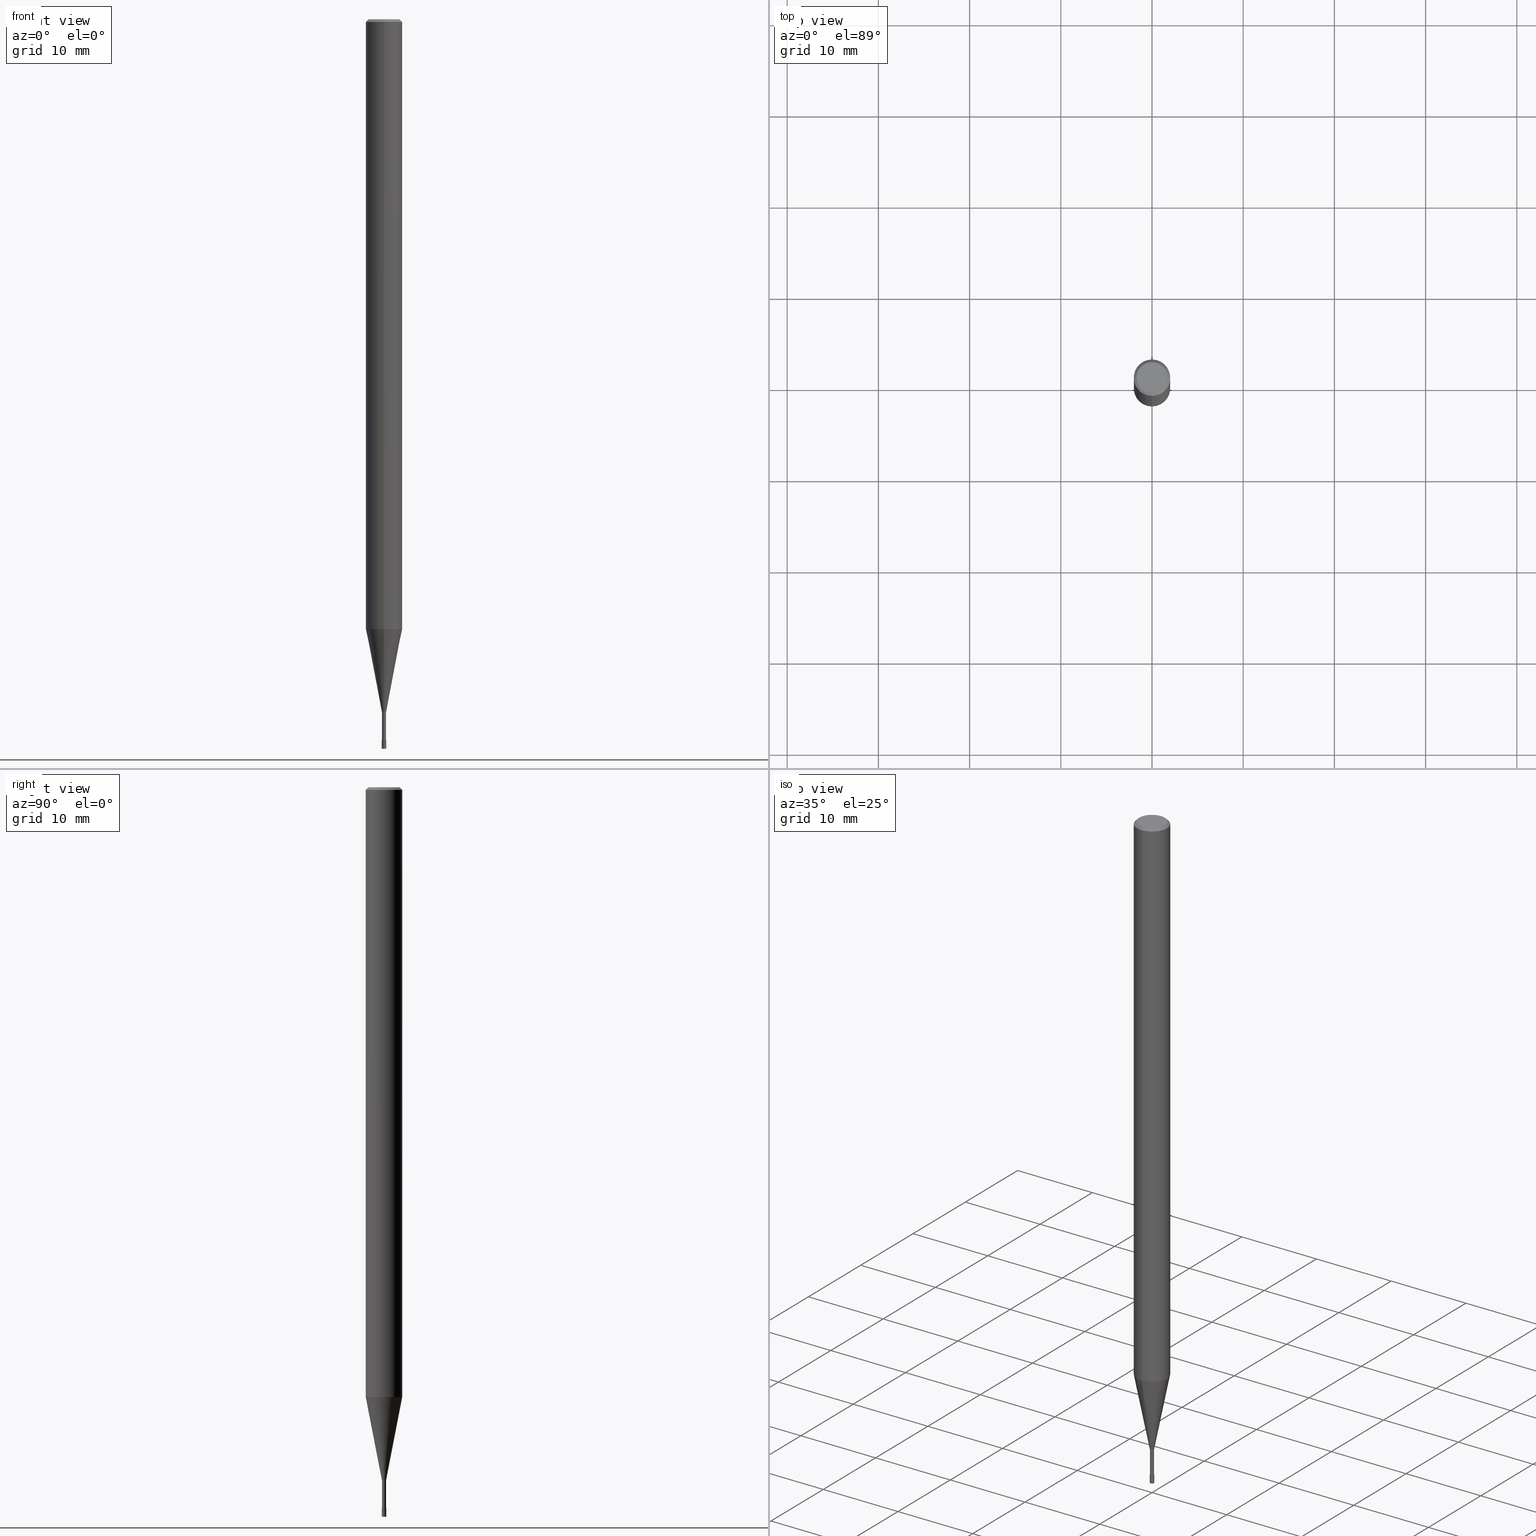
[diagram: canonical four-view strip — front | top / right | iso, engineering-drawing reading convention]
A machine part, canonical four-view strip (front | top / right | iso — engineering-drawing reading convention). The complete STEP part file that produces these views, byte-faithful:
ISO-10303-21;
HEADER;
FILE_DESCRIPTION(('no description'),'unknown implementation level');
FILE_NAME('CPRL2005-4-Huellk.stp','  ',('CIMSOURCE GmbH'),('CADClick - KiM GmbH - www.kimweb.de'),'unknown preprocess','ACIS','unknown authorization');
FILE_SCHEMA(('automotive_design'));
ENDSEC;
DATA;
#1=MECHANICAL_DESIGN_GEOMETRIC_PRESENTATION_REPRESENTATION(' ',(#14,#15,#16,#17,#18,#19,#20,#21,#22,#23,#24,#25,#26,#27,#28,#29,#30,#31,#32,#33,#34,#35,#36,#37,#38,#39,#40,#41,#42,#43,#44,#45,#46,#47,#48,#49,#50,#51,#52,#53,#54,#55,#56,#57,#58,#59,#60,#61,#62,#63,#64,#65,#66,#67,#68,#69,#70,#71,#72),#10);
#2=PRODUCT_DEFINITION_CONTEXT('',#73,'design');
#3=APPLICATION_PROTOCOL_DEFINITION('INTERNATIONAL STANDARD','automotive_design',1994,#73);
#4=PRODUCT_CATEGORY_RELATIONSHIP('NONE','NONE',#74,#75);
#5=SHAPE_DEFINITION_REPRESENTATION(#76,#77);
#6=PRODUCT_DEFINITION_CONTEXT('',#78,'design');
#7=APPLICATION_PROTOCOL_DEFINITION('INTERNATIONAL STANDARD','automotive_design',1994,#78);
#8=PRODUCT_CATEGORY_RELATIONSHIP('NONE','NONE',#79,#80);
#9=SHAPE_DEFINITION_REPRESENTATION(#81,#82);
#10= (GEOMETRIC_REPRESENTATION_CONTEXT(3)GLOBAL_UNCERTAINTY_ASSIGNED_CONTEXT((#85))GLOBAL_UNIT_ASSIGNED_CONTEXT((#87,#88,#89))REPRESENTATION_CONTEXT('NONE','WORKSPACE'));
#14=STYLED_ITEM('',(#91),#92);
#15=STYLED_ITEM('',(#93),#94);
#16=STYLED_ITEM('',(#95),#96);
#17=STYLED_ITEM('',(#97),#98);
#18=STYLED_ITEM('',(#99),#100);
#19=STYLED_ITEM('',(#101),#102);
#20=STYLED_ITEM('',(#103),#104);
#21=STYLED_ITEM('',(#105),#106);
#22=STYLED_ITEM('',(#107),#108);
#23=STYLED_ITEM('',(#109),#110);
#24=STYLED_ITEM('',(#111),#112);
#25=STYLED_ITEM('',(#113),#114);
#26=STYLED_ITEM('',(#115),#116);
#27=STYLED_ITEM('',(#117),#118);
#28=STYLED_ITEM('',(#119),#120);
#29=STYLED_ITEM('',(#121),#122);
#30=STYLED_ITEM('',(#123),#124);
#31=STYLED_ITEM('',(#125),#126);
#32=STYLED_ITEM('',(#127),#128);
#33=STYLED_ITEM('',(#129),#130);
#34=STYLED_ITEM('',(#131),#132);
#35=STYLED_ITEM('',(#133),#134);
#36=STYLED_ITEM('',(#135),#136);
#37=STYLED_ITEM('',(#137),#138);
#38=STYLED_ITEM('',(#139),#140);
#39=STYLED_ITEM('',(#141),#142);
#40=STYLED_ITEM('',(#143),#144);
#41=STYLED_ITEM('',(#145),#146);
#42=STYLED_ITEM('',(#147),#148);
#43=STYLED_ITEM('',(#149),#150);
#44=STYLED_ITEM('',(#151),#152);
#45=STYLED_ITEM('',(#153),#154);
#46=STYLED_ITEM('',(#155),#156);
#47=STYLED_ITEM('',(#157),#158);
#48=STYLED_ITEM('',(#159),#160);
#49=STYLED_ITEM('',(#161),#162);
#50=STYLED_ITEM('',(#163),#164);
#51=STYLED_ITEM('',(#165),#166);
#52=STYLED_ITEM('',(#167),#168);
#53=STYLED_ITEM('',(#169),#170);
#54=STYLED_ITEM('',(#171),#172);
#55=STYLED_ITEM('',(#173),#174);
#56=STYLED_ITEM('',(#175),#176);
#57=STYLED_ITEM('',(#177),#178);
#58=STYLED_ITEM('',(#179),#180);
#59=STYLED_ITEM('',(#181),#182);
#60=STYLED_ITEM('',(#183),#184);
#61=STYLED_ITEM('',(#185),#186);
#62=STYLED_ITEM('',(#187),#188);
#63=STYLED_ITEM('',(#189),#190);
#64=STYLED_ITEM('',(#191),#192);
#65=STYLED_ITEM('',(#193),#194);
#66=STYLED_ITEM('',(#195),#196);
#67=STYLED_ITEM('',(#197),#198);
#68=STYLED_ITEM('',(#199),#200);
#69=STYLED_ITEM('',(#201),#202);
#70=STYLED_ITEM('',(#203),#204);
#71=STYLED_ITEM('',(#205),#206);
#72=STYLED_ITEM('',(#207),#208);
#73=APPLICATION_CONTEXT(' ');
#74=PRODUCT_CATEGORY('part','NONE');
#75=PRODUCT_RELATED_PRODUCT_CATEGORY('detail',' ',(#209));
#76=PRODUCT_DEFINITION_SHAPE('NONE','NONE',#210);
#77=ADVANCED_BREP_SHAPE_REPRESENTATION('1',(#146,#211),#10);
#78=APPLICATION_CONTEXT(' ');
#79=PRODUCT_CATEGORY('part','NONE');
#80=PRODUCT_RELATED_PRODUCT_CATEGORY('detail',' ',(#212));
#81=PRODUCT_DEFINITION_SHAPE('NONE','NONE',#213);
#82=ADVANCED_BREP_SHAPE_REPRESENTATION('2',(#174,#214),#10);
#85=UNCERTAINTY_MEASURE_WITH_UNIT(LENGTH_MEASURE(1.0E-006),#87,'','');
#87= (CONVERSION_BASED_UNIT('MILLIMETRE',#217)LENGTH_UNIT()NAMED_UNIT(#220));
#88= (NAMED_UNIT(#222)PLANE_ANGLE_UNIT()SI_UNIT($,.RADIAN.));
#89= (NAMED_UNIT(#222)SOLID_ANGLE_UNIT()SI_UNIT($,.STERADIAN.));
#91=PRESENTATION_STYLE_ASSIGNMENT((#228));
#92=EDGE_CURVE('',#134,#170,#229,.T.);
#93=PRESENTATION_STYLE_ASSIGNMENT((#230));
#94=EDGE_CURVE('',#100,#106,#231,.T.);
#95=PRESENTATION_STYLE_ASSIGNMENT((#232));
#96=EDGE_CURVE('',#178,#188,#233,.T.);
#97=PRESENTATION_STYLE_ASSIGNMENT((#234));
#98=EDGE_CURVE('',#116,#130,#235,.T.);
#99=PRESENTATION_STYLE_ASSIGNMENT((#236));
#100=VERTEX_POINT('',#237);
#101=PRESENTATION_STYLE_ASSIGNMENT((#238));
#102=ADVANCED_FACE('',(#239),#240,.T.);
#103=PRESENTATION_STYLE_ASSIGNMENT((#241));
#104=EDGE_CURVE('',#192,#160,#242,.T.);
#105=PRESENTATION_STYLE_ASSIGNMENT((#243));
#106=VERTEX_POINT('',#244);
#107=PRESENTATION_STYLE_ASSIGNMENT((#245));
#108=ADVANCED_FACE('',(#246),#247,.T.);
#109=PRESENTATION_STYLE_ASSIGNMENT((#248));
#110=EDGE_CURVE('',#188,#178,#249,.T.);
#111=PRESENTATION_STYLE_ASSIGNMENT((#250));
#112=ADVANCED_FACE('',(#251),#252,.T.);
#113=PRESENTATION_STYLE_ASSIGNMENT((#253));
#114=ADVANCED_FACE('',(#254),#255,.T.);
#115=PRESENTATION_STYLE_ASSIGNMENT((#256));
#116=VERTEX_POINT('',#257);
#117=PRESENTATION_STYLE_ASSIGNMENT((#258));
#118=VERTEX_POINT('',#259);
#119=PRESENTATION_STYLE_ASSIGNMENT((#260));
#120=ADVANCED_FACE('',(#261),#262,.T.);
#121=PRESENTATION_STYLE_ASSIGNMENT((#263));
#122=EDGE_CURVE('',#132,#118,#264,.T.);
#123=PRESENTATION_STYLE_ASSIGNMENT((#265));
#124=ADVANCED_FACE('',(#266,#267),#268,.T.);
#125=PRESENTATION_STYLE_ASSIGNMENT((#269));
#126=ADVANCED_FACE('',(#270),#271,.T.);
#127=PRESENTATION_STYLE_ASSIGNMENT((#272));
#128=ADVANCED_FACE('',(#273),#274,.T.);
#129=PRESENTATION_STYLE_ASSIGNMENT((#275));
#130=VERTEX_POINT('',#276);
#131=PRESENTATION_STYLE_ASSIGNMENT((#277));
#132=VERTEX_POINT('',#278);
#133=PRESENTATION_STYLE_ASSIGNMENT((#279));
#134=VERTEX_POINT('',#280);
#135=PRESENTATION_STYLE_ASSIGNMENT((#281));
#136=ADVANCED_FACE('',(#282),#283,.T.);
#137=PRESENTATION_STYLE_ASSIGNMENT((#284));
#138=EDGE_CURVE('',#140,#106,#285,.T.);
#139=PRESENTATION_STYLE_ASSIGNMENT((#286));
#140=VERTEX_POINT('',#287);
#141=PRESENTATION_STYLE_ASSIGNMENT((#288));
#142=EDGE_CURVE('',#190,#186,#289,.T.);
#143=PRESENTATION_STYLE_ASSIGNMENT((#290));
#144=EDGE_CURVE('',#170,#134,#291,.T.);
#145=PRESENTATION_STYLE_ASSIGNMENT((#292));
#146=MANIFOLD_SOLID_BREP('1',#293);
#147=PRESENTATION_STYLE_ASSIGNMENT((#294));
#148=EDGE_CURVE('',#140,#208,#295,.T.);
#149=PRESENTATION_STYLE_ASSIGNMENT((#296));
#150=EDGE_CURVE('',#188,#100,#297,.T.);
#151=PRESENTATION_STYLE_ASSIGNMENT((#298));
#152=ADVANCED_FACE('',(#299),#300,.T.);
#153=PRESENTATION_STYLE_ASSIGNMENT((#301));
#154=EDGE_CURVE('',#118,#186,#302,.T.);
#155=PRESENTATION_STYLE_ASSIGNMENT((#303));
#156=EDGE_CURVE('',#106,#100,#304,.T.);
#157=PRESENTATION_STYLE_ASSIGNMENT((#305));
#158=EDGE_CURVE('',#130,#190,#306,.T.);
#159=PRESENTATION_STYLE_ASSIGNMENT((#307));
#160=VERTEX_POINT('',#308);
#161=PRESENTATION_STYLE_ASSIGNMENT((#309));
#162=ADVANCED_FACE('',(#310),#311,.T.);
#163=PRESENTATION_STYLE_ASSIGNMENT((#312));
#164=ADVANCED_FACE('',(#313),#314,.T.);
#165=PRESENTATION_STYLE_ASSIGNMENT((#315));
#166=EDGE_CURVE('',#190,#132,#316,.T.);
#167=PRESENTATION_STYLE_ASSIGNMENT((#317));
#168=EDGE_CURVE('',#130,#116,#318,.T.);
#169=PRESENTATION_STYLE_ASSIGNMENT((#319));
#170=VERTEX_POINT('',#320);
#171=PRESENTATION_STYLE_ASSIGNMENT((#321));
#172=EDGE_CURVE('',#118,#132,#322,.T.);
#173=PRESENTATION_STYLE_ASSIGNMENT((#323));
#174=MANIFOLD_SOLID_BREP('2',#324);
#175=PRESENTATION_STYLE_ASSIGNMENT((#325));
#176=ADVANCED_FACE('',(#326),#327,.T.);
#177=PRESENTATION_STYLE_ASSIGNMENT((#328));
#178=VERTEX_POINT('',#329);
#179=PRESENTATION_STYLE_ASSIGNMENT((#330));
#180=EDGE_CURVE('',#106,#178,#331,.T.);
#181=PRESENTATION_STYLE_ASSIGNMENT((#332));
#182=ADVANCED_FACE('',(#333),#334,.T.);
#183=PRESENTATION_STYLE_ASSIGNMENT((#335));
#184=EDGE_CURVE('',#160,#192,#336,.T.);
#185=PRESENTATION_STYLE_ASSIGNMENT((#337));
#186=VERTEX_POINT('',#338);
#187=PRESENTATION_STYLE_ASSIGNMENT((#339));
#188=VERTEX_POINT('',#340);
#189=PRESENTATION_STYLE_ASSIGNMENT((#341));
#190=VERTEX_POINT('',#342);
#191=PRESENTATION_STYLE_ASSIGNMENT((#343));
#192=VERTEX_POINT('',#344);
#193=PRESENTATION_STYLE_ASSIGNMENT((#345));
#194=EDGE_CURVE('',#170,#192,#346,.T.);
#195=PRESENTATION_STYLE_ASSIGNMENT((#347));
#196=ADVANCED_FACE('',(#348),#349,.T.);
#197=PRESENTATION_STYLE_ASSIGNMENT((#350));
#198=EDGE_CURVE('',#160,#134,#351,.T.);
#199=PRESENTATION_STYLE_ASSIGNMENT((#352));
#200=EDGE_CURVE('',#100,#208,#353,.T.);
#201=PRESENTATION_STYLE_ASSIGNMENT((#354));
#202=EDGE_CURVE('',#208,#140,#355,.T.);
#203=PRESENTATION_STYLE_ASSIGNMENT((#356));
#204=EDGE_CURVE('',#186,#190,#357,.T.);
#205=PRESENTATION_STYLE_ASSIGNMENT((#358));
#206=EDGE_CURVE('',#186,#116,#359,.T.);
#207=PRESENTATION_STYLE_ASSIGNMENT((#360));
#208=VERTEX_POINT('',#361);
#209=PRODUCT('1','1','PART-1-DESC',(#362));
#210=PRODUCT_DEFINITION('NONE','NONE',#363,#2);
#211=AXIS2_PLACEMENT_3D('',#364,#365,#366);
#212=PRODUCT('2','2','PART-2-DESC',(#367));
#213=PRODUCT_DEFINITION('NONE','NONE',#368,#6);
#214=AXIS2_PLACEMENT_3D('',#369,#370,#371);
#217=LENGTH_MEASURE_WITH_UNIT(LENGTH_MEASURE(1.0),#372);
#220=DIMENSIONAL_EXPONENTS(1.0,0.0,0.0,0.0,0.0,0.0,0.0);
#222=DIMENSIONAL_EXPONENTS(0.0,0.0,0.0,0.0,0.0,0.0,0.0);
#228=CURVE_STYLE('',#373,POSITIVE_LENGTH_MEASURE(1.0E-006),#374);
#229=CIRCLE('',#375,0.25);
#230=CURVE_STYLE('',#376,POSITIVE_LENGTH_MEASURE(1.0E-006),#377);
#231=CIRCLE('',#378,0.22495);
#232=CURVE_STYLE('',#379,POSITIVE_LENGTH_MEASURE(1.0E-006),#380);
#233=CIRCLE('',#381,1.99995);
#234=CURVE_STYLE('',#382,POSITIVE_LENGTH_MEASURE(1.0E-006),#383);
#235=CIRCLE('',#384,2.0);
#236=POINT_STYLE(' ',#385,POSITIVE_LENGTH_MEASURE(1.0E-006),#386);
#237=CARTESIAN_POINT('',(0.0,0.22495,-76.0));
#238=SURFACE_STYLE_USAGE(.BOTH.,#387);
#239=FACE_OUTER_BOUND('',#388,.T.);
#240=CYLINDRICAL_SURFACE('',#389,0.22495);
#241=CURVE_STYLE('',#390,POSITIVE_LENGTH_MEASURE(1.0E-006),#391);
#242=CIRCLE('',#392,0.2499);
#243=POINT_STYLE(' ',#393,POSITIVE_LENGTH_MEASURE(1.0E-006),#394);
#244=CARTESIAN_POINT('',(2.75475199292344E-017,-0.22495,-76.0));
#245=SURFACE_STYLE_USAGE(.BOTH.,#395);
#246=FACE_OUTER_BOUND('',#396,.T.);
#247=PLANE('',#397);
#248=CURVE_STYLE('',#398,POSITIVE_LENGTH_MEASURE(1.0E-006),#399);
#249=CIRCLE('',#400,1.99995);
#250=SURFACE_STYLE_USAGE(.BOTH.,#401);
#251=FACE_OUTER_BOUND('',#402,.T.);
#252=CYLINDRICAL_SURFACE('',#403,2.0);
#253=SURFACE_STYLE_USAGE(.BOTH.,#404);
#254=FACE_OUTER_BOUND('',#405,.T.);
#255=CONICAL_SURFACE('',#406,1.85,0.785398163397453);
#256=POINT_STYLE(' ',#407,POSITIVE_LENGTH_MEASURE(1.0E-006),#408);
#257=CARTESIAN_POINT('',(0.0,2.0,-66.868));
#258=POINT_STYLE(' ',#409,POSITIVE_LENGTH_MEASURE(1.0E-006),#410);
#259=CARTESIAN_POINT('',(0.0,1.7,0.0));
#260=SURFACE_STYLE_USAGE(.BOTH.,#411);
#261=FACE_OUTER_BOUND('',#412,.T.);
#262=CYLINDRICAL_SURFACE('',#413,2.0);
#263=CURVE_STYLE('',#414,POSITIVE_LENGTH_MEASURE(1.0E-006),#415);
#264=CIRCLE('',#416,1.7);
#265=SURFACE_STYLE_USAGE(.BOTH.,#417);
#266=FACE_OUTER_BOUND('',#418,.T.);
#267=FACE_BOUND('',#419,.T.);
#268=PLANE('',#420);
#269=SURFACE_STYLE_USAGE(.BOTH.,#421);
#270=FACE_OUTER_BOUND('',#422,.T.);
#271=PLANE('',#423);
#272=SURFACE_STYLE_USAGE(.BOTH.,#424);
#273=FACE_OUTER_BOUND('',#425,.T.);
#274=CONICAL_SURFACE('',#426,0.24995,9.99999996666557E-005);
#275=POINT_STYLE(' ',#427,POSITIVE_LENGTH_MEASURE(1.0E-006),#428);
#276=CARTESIAN_POINT('',(2.44921270764475E-016,-2.0,-66.868));
#277=POINT_STYLE(' ',#429,POSITIVE_LENGTH_MEASURE(1.0E-006),#430);
#278=CARTESIAN_POINT('',(2.08183080149804E-016,-1.7,0.0));
#279=POINT_STYLE(' ',#431,POSITIVE_LENGTH_MEASURE(1.0E-006),#432);
#280=CARTESIAN_POINT('',(0.0,0.25,-80.0));
#281=SURFACE_STYLE_USAGE(.BOTH.,#433);
#282=FACE_OUTER_BOUND('',#434,.T.);
#283=PLANE('',#435);
#284=CURVE_STYLE('',#436,POSITIVE_LENGTH_MEASURE(1.0E-006),#437);
#285=LINE('',#438,#439);
#286=POINT_STYLE(' ',#440,POSITIVE_LENGTH_MEASURE(1.0E-006),#441);
#287=CARTESIAN_POINT('',(2.75475199292344E-017,-0.22495,-79.0));
#288=CURVE_STYLE('',#442,POSITIVE_LENGTH_MEASURE(1.0E-006),#443);
#289=CIRCLE('',#444,2.0);
#290=CURVE_STYLE('',#445,POSITIVE_LENGTH_MEASURE(1.0E-006),#446);
#291=CIRCLE('',#447,0.25);
#292=SURFACE_STYLE_USAGE(.BOTH.,#448);
#293=CLOSED_SHELL('',(#176,#162,#120,#164,#124,#126,#114,#112,#152,#102,#108));
#294=CURVE_STYLE('',#449,POSITIVE_LENGTH_MEASURE(1.0E-006),#450);
#295=CIRCLE('',#451,0.22495);
#296=CURVE_STYLE('',#452,POSITIVE_LENGTH_MEASURE(1.0E-006),#453);
#297=LINE('',#454,#455);
#298=SURFACE_STYLE_USAGE(.BOTH.,#456);
#299=FACE_OUTER_BOUND('',#457,.T.);
#300=CONICAL_SURFACE('',#458,1.11245,0.191977672522416);
#301=CURVE_STYLE('',#459,POSITIVE_LENGTH_MEASURE(1.0E-006),#460);
#302=LINE('',#461,#462);
#303=CURVE_STYLE('',#463,POSITIVE_LENGTH_MEASURE(1.0E-006),#464);
#304=CIRCLE('',#465,0.22495);
#305=CURVE_STYLE('',#466,POSITIVE_LENGTH_MEASURE(1.0E-006),#467);
#306=LINE('',#468,#469);
#307=POINT_STYLE(' ',#470,POSITIVE_LENGTH_MEASURE(1.0E-006),#471);
#308=CARTESIAN_POINT('',(0.0,0.2499,-79.0));
#309=SURFACE_STYLE_USAGE(.BOTH.,#472);
#310=FACE_OUTER_BOUND('',#473,.T.);
#311=CONICAL_SURFACE('',#474,1.11245,0.191977672522416);
#312=SURFACE_STYLE_USAGE(.BOTH.,#475);
#313=FACE_OUTER_BOUND('',#476,.T.);
#314=CONICAL_SURFACE('',#477,1.85,0.785398163397453);
#315=CURVE_STYLE('',#478,POSITIVE_LENGTH_MEASURE(1.0E-006),#479);
#316=LINE('',#480,#481);
#317=CURVE_STYLE('',#482,POSITIVE_LENGTH_MEASURE(1.0E-006),#483);
#318=CIRCLE('',#484,2.0);
#319=POINT_STYLE(' ',#485,POSITIVE_LENGTH_MEASURE(1.0E-006),#486);
#320=CARTESIAN_POINT('',(3.06151588455594E-017,-0.25,-80.0));
#321=CURVE_STYLE('',#487,POSITIVE_LENGTH_MEASURE(1.0E-006),#488);
#322=CIRCLE('',#489,1.7);
#323=SURFACE_STYLE_USAGE(.BOTH.,#490);
#324=CLOSED_SHELL('',(#128,#136,#182,#196));
#325=SURFACE_STYLE_USAGE(.BOTH.,#491);
#326=FACE_OUTER_BOUND('',#492,.T.);
#327=CYLINDRICAL_SURFACE('',#493,0.22495);
#328=POINT_STYLE(' ',#494,POSITIVE_LENGTH_MEASURE(1.0E-006),#495);
#329=CARTESIAN_POINT('',(2.44915147732706E-016,-1.99995,-66.868));
#330=CURVE_STYLE('',#496,POSITIVE_LENGTH_MEASURE(1.0E-006),#497);
#331=LINE('',#498,#499);
#332=SURFACE_STYLE_USAGE(.BOTH.,#500);
#333=FACE_OUTER_BOUND('',#501,.T.);
#334=CONICAL_SURFACE('',#502,0.24995,9.99999996666557E-005);
#335=CURVE_STYLE('',#503,POSITIVE_LENGTH_MEASURE(1.0E-006),#504);
#336=CIRCLE('',#505,0.2499);
#337=POINT_STYLE(' ',#506,POSITIVE_LENGTH_MEASURE(1.0E-006),#507);
#338=CARTESIAN_POINT('',(0.0,2.0,-0.299999999999997));
#339=POINT_STYLE(' ',#508,POSITIVE_LENGTH_MEASURE(1.0E-006),#509);
#340=CARTESIAN_POINT('',(0.0,1.99995,-66.868));
#341=POINT_STYLE(' ',#510,POSITIVE_LENGTH_MEASURE(1.0E-006),#511);
#342=CARTESIAN_POINT('',(2.44921270764475E-016,-2.0,-0.299999999999997));
#343=POINT_STYLE(' ',#512,POSITIVE_LENGTH_MEASURE(1.0E-006),#513);
#344=CARTESIAN_POINT('',(3.06029127820212E-017,-0.2499,-79.0));
#345=CURVE_STYLE('',#514,POSITIVE_LENGTH_MEASURE(1.0E-006),#515);
#346=LINE('',#516,#517);
#347=SURFACE_STYLE_USAGE(.BOTH.,#518);
#348=FACE_OUTER_BOUND('',#519,.T.);
#349=PLANE('',#520);
#350=CURVE_STYLE('',#521,POSITIVE_LENGTH_MEASURE(1.0E-006),#522);
#351=LINE('',#523,#524);
#352=CURVE_STYLE('',#525,POSITIVE_LENGTH_MEASURE(1.0E-006),#526);
#353=LINE('',#527,#528);
#354=CURVE_STYLE('',#529,POSITIVE_LENGTH_MEASURE(1.0E-006),#530);
#355=CIRCLE('',#531,0.22495);
#356=CURVE_STYLE('',#532,POSITIVE_LENGTH_MEASURE(1.0E-006),#533);
#357=CIRCLE('',#534,2.0);
#358=CURVE_STYLE('',#535,POSITIVE_LENGTH_MEASURE(1.0E-006),#536);
#359=LINE('',#537,#538);
#360=POINT_STYLE(' ',#539,POSITIVE_LENGTH_MEASURE(1.0E-006),#540);
#361=CARTESIAN_POINT('',(0.0,0.22495,-79.0));
#362=PRODUCT_CONTEXT('',#73,'mechanical');
#363=PRODUCT_DEFINITION_FORMATION_WITH_SPECIFIED_SOURCE(' ','NONE',#209,.NOT_KNOWN.);
#364=CARTESIAN_POINT('',(0.0,0.0,0.0));
#365=DIRECTION('',(0.0,0.0,1.0));
#366=DIRECTION('',(1.0,0.0,0.0));
#367=PRODUCT_CONTEXT('',#78,'mechanical');
#368=PRODUCT_DEFINITION_FORMATION_WITH_SPECIFIED_SOURCE(' ','NONE',#212,.NOT_KNOWN.);
#369=CARTESIAN_POINT('',(0.0,0.0,0.0));
#370=DIRECTION('',(0.0,0.0,1.0));
#371=DIRECTION('',(1.0,0.0,0.0));
#372= (NAMED_UNIT(#220)LENGTH_UNIT()SI_UNIT(.MILLI.,.METRE.));
#373=DRAUGHTING_PRE_DEFINED_CURVE_FONT('continuous');
#374=COLOUR_RGB('',0.800000011920929,0.800000011920929,0.800000011920929);
#375=AXIS2_PLACEMENT_3D('',#542,#543,#544);
#376=DRAUGHTING_PRE_DEFINED_CURVE_FONT('continuous');
#377=COLOUR_RGB('',0.498039215803146,0.498039215803146,0.498039215803146);
#378=AXIS2_PLACEMENT_3D('',#545,#546,#547);
#379=DRAUGHTING_PRE_DEFINED_CURVE_FONT('continuous');
#380=COLOUR_RGB('',0.498039215803146,0.498039215803146,0.498039215803146);
#381=AXIS2_PLACEMENT_3D('',#548,#549,#550);
#382=DRAUGHTING_PRE_DEFINED_CURVE_FONT('continuous');
#383=COLOUR_RGB('',0.498039215803146,0.498039215803146,0.498039215803146);
#384=AXIS2_PLACEMENT_3D('',#551,#552,#553);
#385=PRE_DEFINED_MARKER('');
#386=COLOUR_RGB('',0.498039215803146,0.498039215803146,0.498039215803146);
#387=SURFACE_SIDE_STYLE('',(#554));
#388=EDGE_LOOP('',(#555,#556,#557,#558));
#389=AXIS2_PLACEMENT_3D('',#559,#560,#561);
#390=DRAUGHTING_PRE_DEFINED_CURVE_FONT('continuous');
#391=COLOUR_RGB('',0.800000011920929,0.800000011920929,0.800000011920929);
#392=AXIS2_PLACEMENT_3D('',#562,#563,#564);
#393=PRE_DEFINED_MARKER('');
#394=COLOUR_RGB('',0.498039215803146,0.498039215803146,0.498039215803146);
#395=SURFACE_SIDE_STYLE('',(#565));
#396=EDGE_LOOP('',(#566,#567));
#397=AXIS2_PLACEMENT_3D('',#568,#569,#570);
#398=DRAUGHTING_PRE_DEFINED_CURVE_FONT('continuous');
#399=COLOUR_RGB('',0.498039215803146,0.498039215803146,0.498039215803146);
#400=AXIS2_PLACEMENT_3D('',#571,#572,#573);
#401=SURFACE_SIDE_STYLE('',(#574));
#402=EDGE_LOOP('',(#575,#576,#577,#578));
#403=AXIS2_PLACEMENT_3D('',#579,#580,#581);
#404=SURFACE_SIDE_STYLE('',(#582));
#405=EDGE_LOOP('',(#583,#584,#585,#586));
#406=AXIS2_PLACEMENT_3D('',#587,#588,#589);
#407=PRE_DEFINED_MARKER('');
#408=COLOUR_RGB('',0.498039215803146,0.498039215803146,0.498039215803146);
#409=PRE_DEFINED_MARKER('');
#410=COLOUR_RGB('',0.498039215803146,0.498039215803146,0.498039215803146);
#411=SURFACE_SIDE_STYLE('',(#590));
#412=EDGE_LOOP('',(#591,#592,#593,#594));
#413=AXIS2_PLACEMENT_3D('',#595,#596,#597);
#414=DRAUGHTING_PRE_DEFINED_CURVE_FONT('continuous');
#415=COLOUR_RGB('',0.498039215803146,0.498039215803146,0.498039215803146);
#416=AXIS2_PLACEMENT_3D('',#598,#599,#600);
#417=SURFACE_SIDE_STYLE('',(#601));
#418=EDGE_LOOP('',(#602,#603));
#419=EDGE_LOOP('',(#604,#605));
#420=AXIS2_PLACEMENT_3D('',#606,#607,#608);
#421=SURFACE_SIDE_STYLE('',(#609));
#422=EDGE_LOOP('',(#610,#611));
#423=AXIS2_PLACEMENT_3D('',#612,#613,#614);
#424=SURFACE_SIDE_STYLE('',(#615));
#425=EDGE_LOOP('',(#616,#617,#618,#619));
#426=AXIS2_PLACEMENT_3D('',#620,#621,#622);
#427=PRE_DEFINED_MARKER('');
#428=COLOUR_RGB('',0.498039215803146,0.498039215803146,0.498039215803146);
#429=PRE_DEFINED_MARKER('');
#430=COLOUR_RGB('',0.498039215803146,0.498039215803146,0.498039215803146);
#431=PRE_DEFINED_MARKER('');
#432=COLOUR_RGB('',0.800000011920929,0.800000011920929,0.800000011920929);
#433=SURFACE_SIDE_STYLE('',(#623));
#434=EDGE_LOOP('',(#624,#625));
#435=AXIS2_PLACEMENT_3D('',#626,#627,#628);
#436=DRAUGHTING_PRE_DEFINED_CURVE_FONT('continuous');
#437=COLOUR_RGB('',0.498039215803146,0.498039215803146,0.498039215803146);
#438=CARTESIAN_POINT('',(2.75475199292344E-017,-0.22495,-77.5));
#439=VECTOR('',#629,1.0);
#440=PRE_DEFINED_MARKER('');
#441=COLOUR_RGB('',0.498039215803146,0.498039215803146,0.498039215803146);
#442=DRAUGHTING_PRE_DEFINED_CURVE_FONT('continuous');
#443=COLOUR_RGB('',0.498039215803146,0.498039215803146,0.498039215803146);
#444=AXIS2_PLACEMENT_3D('',#630,#631,#632);
#445=DRAUGHTING_PRE_DEFINED_CURVE_FONT('continuous');
#446=COLOUR_RGB('',0.800000011920929,0.800000011920929,0.800000011920929);
#447=AXIS2_PLACEMENT_3D('',#633,#634,#635);
#448=SURFACE_SIDE_STYLE('',(#636));
#449=DRAUGHTING_PRE_DEFINED_CURVE_FONT('continuous');
#450=COLOUR_RGB('',0.498039215803146,0.498039215803146,0.498039215803146);
#451=AXIS2_PLACEMENT_3D('',#637,#638,#639);
#452=DRAUGHTING_PRE_DEFINED_CURVE_FONT('continuous');
#453=COLOUR_RGB('',0.498039215803146,0.498039215803146,0.498039215803146);
#454=CARTESIAN_POINT('',(-1.3623133383097E-016,1.11245,-71.434));
#455=VECTOR('',#640,1.0);
#456=SURFACE_SIDE_STYLE('',(#641));
#457=EDGE_LOOP('',(#642,#643,#644,#645));
#458=AXIS2_PLACEMENT_3D('',#646,#647,#648);
#459=DRAUGHTING_PRE_DEFINED_CURVE_FONT('continuous');
#460=COLOUR_RGB('',0.498039215803146,0.498039215803146,0.498039215803146);
#461=CARTESIAN_POINT('',(-2.2655217545714E-016,1.85,-0.149999999999991));
#462=VECTOR('',#649,1.0);
#463=DRAUGHTING_PRE_DEFINED_CURVE_FONT('continuous');
#464=COLOUR_RGB('',0.498039215803146,0.498039215803146,0.498039215803146);
#465=AXIS2_PLACEMENT_3D('',#650,#651,#652);
#466=DRAUGHTING_PRE_DEFINED_CURVE_FONT('continuous');
#467=COLOUR_RGB('',0.498039215803146,0.498039215803146,0.498039215803146);
#468=CARTESIAN_POINT('',(2.44921270764475E-016,-2.0,-33.584));
#469=VECTOR('',#653,1.0);
#470=PRE_DEFINED_MARKER('');
#471=COLOUR_RGB('',0.800000011920929,0.800000011920929,0.800000011920929);
#472=SURFACE_SIDE_STYLE('',(#654));
#473=EDGE_LOOP('',(#655,#656,#657,#658));
#474=AXIS2_PLACEMENT_3D('',#659,#660,#661);
#475=SURFACE_SIDE_STYLE('',(#662));
#476=EDGE_LOOP('',(#663,#664,#665,#666));
#477=AXIS2_PLACEMENT_3D('',#667,#668,#669);
#478=DRAUGHTING_PRE_DEFINED_CURVE_FONT('continuous');
#479=COLOUR_RGB('',0.498039215803146,0.498039215803146,0.498039215803146);
#480=CARTESIAN_POINT('',(2.2655217545714E-016,-1.85,-0.149999999999991));
#481=VECTOR('',#670,1.0);
#482=DRAUGHTING_PRE_DEFINED_CURVE_FONT('continuous');
#483=COLOUR_RGB('',0.498039215803146,0.498039215803146,0.498039215803146);
#484=AXIS2_PLACEMENT_3D('',#671,#672,#673);
#485=PRE_DEFINED_MARKER('');
#486=COLOUR_RGB('',0.800000011920929,0.800000011920929,0.800000011920929);
#487=DRAUGHTING_PRE_DEFINED_CURVE_FONT('continuous');
#488=COLOUR_RGB('',0.498039215803146,0.498039215803146,0.498039215803146);
#489=AXIS2_PLACEMENT_3D('',#674,#675,#676);
#490=SURFACE_SIDE_STYLE('',(#677));
#491=SURFACE_SIDE_STYLE('',(#678));
#492=EDGE_LOOP('',(#679,#680,#681,#682));
#493=AXIS2_PLACEMENT_3D('',#683,#684,#685);
#494=PRE_DEFINED_MARKER('');
#495=COLOUR_RGB('',0.498039215803146,0.498039215803146,0.498039215803146);
#496=DRAUGHTING_PRE_DEFINED_CURVE_FONT('continuous');
#497=COLOUR_RGB('',0.498039215803146,0.498039215803146,0.498039215803146);
#498=CARTESIAN_POINT('',(1.3623133383097E-016,-1.11245,-71.434));
#499=VECTOR('',#686,1.0);
#500=SURFACE_SIDE_STYLE('',(#687));
#501=EDGE_LOOP('',(#688,#689,#690,#691));
#502=AXIS2_PLACEMENT_3D('',#692,#693,#694);
#503=DRAUGHTING_PRE_DEFINED_CURVE_FONT('continuous');
#504=COLOUR_RGB('',0.800000011920929,0.800000011920929,0.800000011920929);
#505=AXIS2_PLACEMENT_3D('',#695,#696,#697);
#506=PRE_DEFINED_MARKER('');
#507=COLOUR_RGB('',0.498039215803146,0.498039215803146,0.498039215803146);
#508=PRE_DEFINED_MARKER('');
#509=COLOUR_RGB('',0.498039215803146,0.498039215803146,0.498039215803146);
#510=PRE_DEFINED_MARKER('');
#511=COLOUR_RGB('',0.498039215803146,0.498039215803146,0.498039215803146);
#512=PRE_DEFINED_MARKER('');
#513=COLOUR_RGB('',0.800000011920929,0.800000011920929,0.800000011920929);
#514=DRAUGHTING_PRE_DEFINED_CURVE_FONT('continuous');
#515=COLOUR_RGB('',0.800000011920929,0.800000011920929,0.800000011920929);
#516=CARTESIAN_POINT('',(3.06090358137903E-017,-0.24995,-79.5));
#517=VECTOR('',#698,1.0);
#518=SURFACE_SIDE_STYLE('',(#699));
#519=EDGE_LOOP('',(#700,#701));
#520=AXIS2_PLACEMENT_3D('',#702,#703,#704);
#521=DRAUGHTING_PRE_DEFINED_CURVE_FONT('continuous');
#522=COLOUR_RGB('',0.800000011920929,0.800000011920929,0.800000011920929);
#523=CARTESIAN_POINT('',(-3.06090358137903E-017,0.24995,-79.5));
#524=VECTOR('',#705,1.0);
#525=DRAUGHTING_PRE_DEFINED_CURVE_FONT('continuous');
#526=COLOUR_RGB('',0.498039215803146,0.498039215803146,0.498039215803146);
#527=CARTESIAN_POINT('',(-2.75475199292344E-017,0.22495,-77.5));
#528=VECTOR('',#706,1.0);
#529=DRAUGHTING_PRE_DEFINED_CURVE_FONT('continuous');
#530=COLOUR_RGB('',0.498039215803146,0.498039215803146,0.498039215803146);
#531=AXIS2_PLACEMENT_3D('',#707,#708,#709);
#532=DRAUGHTING_PRE_DEFINED_CURVE_FONT('continuous');
#533=COLOUR_RGB('',0.498039215803146,0.498039215803146,0.498039215803146);
#534=AXIS2_PLACEMENT_3D('',#710,#711,#712);
#535=DRAUGHTING_PRE_DEFINED_CURVE_FONT('continuous');
#536=COLOUR_RGB('',0.498039215803146,0.498039215803146,0.498039215803146);
#537=CARTESIAN_POINT('',(-2.44921270764475E-016,2.0,-33.584));
#538=VECTOR('',#713,1.0);
#539=PRE_DEFINED_MARKER('');
#540=COLOUR_RGB('',0.498039215803146,0.498039215803146,0.498039215803146);
#542=CARTESIAN_POINT('',(0.0,0.0,-80.0));
#543=DIRECTION('',(0.0,0.0,-1.0));
#544=DIRECTION('',(0.0,1.0,0.0));
#545=CARTESIAN_POINT('',(0.0,0.0,-76.0));
#546=DIRECTION('',(0.0,0.0,-1.0));
#547=DIRECTION('',(0.0,1.0,0.0));
#548=CARTESIAN_POINT('',(0.0,0.0,-66.868));
#549=DIRECTION('',(0.0,0.0,-1.0));
#550=DIRECTION('',(0.0,1.0,0.0));
#551=CARTESIAN_POINT('',(0.0,0.0,-66.868));
#552=DIRECTION('',(0.0,0.0,-1.0));
#553=DIRECTION('',(0.0,1.0,0.0));
#554=SURFACE_STYLE_FILL_AREA(#714);
#555=ORIENTED_EDGE('',*,*,#200,.T.);
#556=ORIENTED_EDGE('',*,*,#148,.F.);
#557=ORIENTED_EDGE('',*,*,#138,.T.);
#558=ORIENTED_EDGE('',*,*,#156,.T.);
#559=CARTESIAN_POINT('',(0.0,0.0,-77.5));
#560=DIRECTION('',(-0.0,-0.0,1.0));
#561=DIRECTION('',(0.0,1.0,0.0));
#562=CARTESIAN_POINT('',(0.0,0.0,-79.0));
#563=DIRECTION('',(0.0,0.0,-1.0));
#564=DIRECTION('',(0.0,1.0,0.0));
#565=SURFACE_STYLE_FILL_AREA(#715);
#566=ORIENTED_EDGE('',*,*,#202,.T.);
#567=ORIENTED_EDGE('',*,*,#148,.T.);
#568=CARTESIAN_POINT('',(0.0,0.112475,-79.0));
#569=DIRECTION('',(0.0,0.0,-1.0));
#570=DIRECTION('',(0.0,1.0,0.0));
#571=CARTESIAN_POINT('',(0.0,0.0,-66.868));
#572=DIRECTION('',(0.0,0.0,-1.0));
#573=DIRECTION('',(0.0,1.0,0.0));
#574=SURFACE_STYLE_FILL_AREA(#716);
#575=ORIENTED_EDGE('',*,*,#206,.T.);
#576=ORIENTED_EDGE('',*,*,#168,.F.);
#577=ORIENTED_EDGE('',*,*,#158,.T.);
#578=ORIENTED_EDGE('',*,*,#142,.T.);
#579=CARTESIAN_POINT('',(0.0,0.0,-33.584));
#580=DIRECTION('',(-0.0,-0.0,1.0));
#581=DIRECTION('',(0.0,1.0,0.0));
#582=SURFACE_STYLE_FILL_AREA(#717);
#583=ORIENTED_EDGE('',*,*,#154,.T.);
#584=ORIENTED_EDGE('',*,*,#142,.F.);
#585=ORIENTED_EDGE('',*,*,#166,.T.);
#586=ORIENTED_EDGE('',*,*,#122,.T.);
#587=CARTESIAN_POINT('',(0.0,0.0,-0.149999999999991));
#588=DIRECTION('',(0.0,-0.0,-1.0));
#589=DIRECTION('',(0.0,1.0,0.0));
#590=SURFACE_STYLE_FILL_AREA(#718);
#591=ORIENTED_EDGE('',*,*,#206,.F.);
#592=ORIENTED_EDGE('',*,*,#204,.T.);
#593=ORIENTED_EDGE('',*,*,#158,.F.);
#594=ORIENTED_EDGE('',*,*,#98,.F.);
#595=CARTESIAN_POINT('',(0.0,0.0,-33.584));
#596=DIRECTION('',(-0.0,-0.0,1.0));
#597=DIRECTION('',(0.0,1.0,0.0));
#598=CARTESIAN_POINT('',(0.0,0.0,0.0));
#599=DIRECTION('',(0.0,0.0,-1.0));
#600=DIRECTION('',(0.0,1.0,0.0));
#601=SURFACE_STYLE_FILL_AREA(#719);
#602=ORIENTED_EDGE('',*,*,#98,.T.);
#603=ORIENTED_EDGE('',*,*,#168,.T.);
#604=ORIENTED_EDGE('',*,*,#110,.F.);
#605=ORIENTED_EDGE('',*,*,#96,.F.);
#606=CARTESIAN_POINT('',(0.0,1.0,-66.868));
#607=DIRECTION('',(0.0,0.0,-1.0));
#608=DIRECTION('',(0.0,1.0,0.0));
#609=SURFACE_STYLE_FILL_AREA(#720);
#610=ORIENTED_EDGE('',*,*,#172,.F.);
#611=ORIENTED_EDGE('',*,*,#122,.F.);
#612=CARTESIAN_POINT('',(0.0,0.85,0.0));
#613=DIRECTION('',(-0.0,0.0,1.0));
#614=DIRECTION('',(0.0,-1.0,0.0));
#615=SURFACE_STYLE_FILL_AREA(#721);
#616=ORIENTED_EDGE('',*,*,#198,.F.);
#617=ORIENTED_EDGE('',*,*,#184,.T.);
#618=ORIENTED_EDGE('',*,*,#194,.F.);
#619=ORIENTED_EDGE('',*,*,#92,.F.);
#620=CARTESIAN_POINT('',(0.0,0.0,-79.5));
#621=DIRECTION('',(0.0,-0.0,-1.0));
#622=DIRECTION('',(0.0,1.0,0.0));
#623=SURFACE_STYLE_FILL_AREA(#722);
#624=ORIENTED_EDGE('',*,*,#184,.F.);
#625=ORIENTED_EDGE('',*,*,#104,.F.);
#626=CARTESIAN_POINT('',(0.0,0.12495,-79.0));
#627=DIRECTION('',(-0.0,0.0,1.0));
#628=DIRECTION('',(0.0,-1.0,0.0));
#629=DIRECTION('',(-0.0,-0.0,1.0));
#630=CARTESIAN_POINT('',(0.0,0.0,-0.299999999999997));
#631=DIRECTION('',(0.0,0.0,-1.0));
#632=DIRECTION('',(0.0,1.0,0.0));
#633=CARTESIAN_POINT('',(0.0,0.0,-80.0));
#634=DIRECTION('',(0.0,0.0,-1.0));
#635=DIRECTION('',(0.0,1.0,0.0));
#636=SURFACE_STYLE_FILL_AREA(#723);
#637=CARTESIAN_POINT('',(0.0,0.0,-79.0));
#638=DIRECTION('',(0.0,0.0,-1.0));
#639=DIRECTION('',(0.0,1.0,0.0));
#640=DIRECTION('',(2.33655635855942E-017,-0.190800607171954,-0.981628813912272));
#641=SURFACE_STYLE_FILL_AREA(#724);
#642=ORIENTED_EDGE('',*,*,#150,.T.);
#643=ORIENTED_EDGE('',*,*,#156,.F.);
#644=ORIENTED_EDGE('',*,*,#180,.T.);
#645=ORIENTED_EDGE('',*,*,#96,.T.);
#646=CARTESIAN_POINT('',(0.0,0.0,-71.434));
#647=DIRECTION('',(-0.0,-0.0,1.0));
#648=DIRECTION('',(0.0,1.0,0.0));
#649=DIRECTION('',(-8.6592745707194E-017,0.707106781186551,-0.707106781186544));
#650=CARTESIAN_POINT('',(0.0,0.0,-76.0));
#651=DIRECTION('',(0.0,0.0,-1.0));
#652=DIRECTION('',(0.0,1.0,0.0));
#653=DIRECTION('',(-0.0,-0.0,1.0));
#654=SURFACE_STYLE_FILL_AREA(#725);
#655=ORIENTED_EDGE('',*,*,#150,.F.);
#656=ORIENTED_EDGE('',*,*,#110,.T.);
#657=ORIENTED_EDGE('',*,*,#180,.F.);
#658=ORIENTED_EDGE('',*,*,#94,.F.);
#659=CARTESIAN_POINT('',(0.0,0.0,-71.434));
#660=DIRECTION('',(-0.0,-0.0,1.0));
#661=DIRECTION('',(0.0,1.0,0.0));
#662=SURFACE_STYLE_FILL_AREA(#726);
#663=ORIENTED_EDGE('',*,*,#154,.F.);
#664=ORIENTED_EDGE('',*,*,#172,.T.);
#665=ORIENTED_EDGE('',*,*,#166,.F.);
#666=ORIENTED_EDGE('',*,*,#204,.F.);
#667=CARTESIAN_POINT('',(0.0,0.0,-0.149999999999991));
#668=DIRECTION('',(0.0,-0.0,-1.0));
#669=DIRECTION('',(0.0,1.0,0.0));
#670=DIRECTION('',(-8.6592745707194E-017,0.707106781186551,0.707106781186544));
#671=CARTESIAN_POINT('',(0.0,0.0,-66.868));
#672=DIRECTION('',(0.0,0.0,-1.0));
#673=DIRECTION('',(0.0,1.0,0.0));
#674=CARTESIAN_POINT('',(0.0,0.0,0.0));
#675=DIRECTION('',(0.0,0.0,-1.0));
#676=DIRECTION('',(0.0,1.0,0.0));
#677=SURFACE_STYLE_FILL_AREA(#727);
#678=SURFACE_STYLE_FILL_AREA(#728);
#679=ORIENTED_EDGE('',*,*,#200,.F.);
#680=ORIENTED_EDGE('',*,*,#94,.T.);
#681=ORIENTED_EDGE('',*,*,#138,.F.);
#682=ORIENTED_EDGE('',*,*,#202,.F.);
#683=CARTESIAN_POINT('',(0.0,0.0,-77.5));
#684=DIRECTION('',(-0.0,-0.0,1.0));
#685=DIRECTION('',(0.0,1.0,0.0));
#686=DIRECTION('',(2.33655635855942E-017,-0.190800607171954,0.981628813912272));
#687=SURFACE_STYLE_FILL_AREA(#729);
#688=ORIENTED_EDGE('',*,*,#198,.T.);
#689=ORIENTED_EDGE('',*,*,#144,.F.);
#690=ORIENTED_EDGE('',*,*,#194,.T.);
#691=ORIENTED_EDGE('',*,*,#104,.T.);
#692=CARTESIAN_POINT('',(0.0,0.0,-79.5));
#693=DIRECTION('',(0.0,-0.0,-1.0));
#694=DIRECTION('',(0.0,1.0,0.0));
#695=CARTESIAN_POINT('',(0.0,0.0,-79.0));
#696=DIRECTION('',(0.0,0.0,-1.0));
#697=DIRECTION('',(0.0,1.0,0.0));
#698=DIRECTION('',(-1.22460634769921E-020,9.9999999499989E-005,0.999999995));
#699=SURFACE_STYLE_FILL_AREA(#730);
#700=ORIENTED_EDGE('',*,*,#92,.T.);
#701=ORIENTED_EDGE('',*,*,#144,.T.);
#702=CARTESIAN_POINT('',(0.0,0.1225,-80.0));
#703=DIRECTION('',(0.0,0.0,-1.0));
#704=DIRECTION('',(0.0,1.0,0.0));
#705=DIRECTION('',(-1.22460634769921E-020,9.9999999499989E-005,-0.999999995));
#706=DIRECTION('',(0.0,0.0,-1.0));
#707=CARTESIAN_POINT('',(0.0,0.0,-79.0));
#708=DIRECTION('',(0.0,0.0,-1.0));
#709=DIRECTION('',(0.0,1.0,0.0));
#710=CARTESIAN_POINT('',(0.0,0.0,-0.299999999999997));
#711=DIRECTION('',(0.0,0.0,-1.0));
#712=DIRECTION('',(0.0,1.0,0.0));
#713=DIRECTION('',(0.0,0.0,-1.0));
#714=FILL_AREA_STYLE('',(#731));
#715=FILL_AREA_STYLE('',(#732));
#716=FILL_AREA_STYLE('',(#733));
#717=FILL_AREA_STYLE('',(#734));
#718=FILL_AREA_STYLE('',(#735));
#719=FILL_AREA_STYLE('',(#736));
#720=FILL_AREA_STYLE('',(#737));
#721=FILL_AREA_STYLE('',(#738));
#722=FILL_AREA_STYLE('',(#739));
#723=FILL_AREA_STYLE('',(#740));
#724=FILL_AREA_STYLE('',(#741));
#725=FILL_AREA_STYLE('',(#742));
#726=FILL_AREA_STYLE('',(#743));
#727=FILL_AREA_STYLE('',(#744));
#728=FILL_AREA_STYLE('',(#745));
#729=FILL_AREA_STYLE('',(#746));
#730=FILL_AREA_STYLE('',(#747));
#731=FILL_AREA_STYLE_COLOUR('',#748);
#732=FILL_AREA_STYLE_COLOUR('',#749);
#733=FILL_AREA_STYLE_COLOUR('',#750);
#734=FILL_AREA_STYLE_COLOUR('',#751);
#735=FILL_AREA_STYLE_COLOUR('',#752);
#736=FILL_AREA_STYLE_COLOUR('',#753);
#737=FILL_AREA_STYLE_COLOUR('',#754);
#738=FILL_AREA_STYLE_COLOUR('',#755);
#739=FILL_AREA_STYLE_COLOUR('',#756);
#740=FILL_AREA_STYLE_COLOUR('',#757);
#741=FILL_AREA_STYLE_COLOUR('',#758);
#742=FILL_AREA_STYLE_COLOUR('',#759);
#743=FILL_AREA_STYLE_COLOUR('',#760);
#744=FILL_AREA_STYLE_COLOUR('',#761);
#745=FILL_AREA_STYLE_COLOUR('',#762);
#746=FILL_AREA_STYLE_COLOUR('',#763);
#747=FILL_AREA_STYLE_COLOUR('',#764);
#748=COLOUR_RGB('',0.498039215803146,0.498039215803146,0.498039215803146);
#749=COLOUR_RGB('',0.498039215803146,0.498039215803146,0.498039215803146);
#750=COLOUR_RGB('',0.498039215803146,0.498039215803146,0.498039215803146);
#751=COLOUR_RGB('',0.498039215803146,0.498039215803146,0.498039215803146);
#752=COLOUR_RGB('',0.498039215803146,0.498039215803146,0.498039215803146);
#753=COLOUR_RGB('',0.498039215803146,0.498039215803146,0.498039215803146);
#754=COLOUR_RGB('',0.498039215803146,0.498039215803146,0.498039215803146);
#755=COLOUR_RGB('',0.800000011920929,0.800000011920929,0.800000011920929);
#756=COLOUR_RGB('',0.800000011920929,0.800000011920929,0.800000011920929);
#757=COLOUR_RGB('',0.498039215803146,0.498039215803146,0.498039215803146);
#758=COLOUR_RGB('',0.498039215803146,0.498039215803146,0.498039215803146);
#759=COLOUR_RGB('',0.498039215803146,0.498039215803146,0.498039215803146);
#760=COLOUR_RGB('',0.498039215803146,0.498039215803146,0.498039215803146);
#761=COLOUR_RGB('',0.800000011920929,0.800000011920929,0.800000011920929);
#762=COLOUR_RGB('',0.498039215803146,0.498039215803146,0.498039215803146);
#763=COLOUR_RGB('',0.800000011920929,0.800000011920929,0.800000011920929);
#764=COLOUR_RGB('',0.800000011920929,0.800000011920929,0.800000011920929);
#765=AXIS2_PLACEMENT_3D('PCS',#766,#767,#768);
#766=CARTESIAN_POINT('',(0.0,0.0,0.0));
#767=DIRECTION('',(0.0,0.0,1.0));
#768=DIRECTION('',(1.0,0.0,0.0));
#769=AXIS2_PLACEMENT_3D('CIP',#770,#771,#772);
#770=CARTESIAN_POINT('',(0.0,0.0,-80.0));
#771=DIRECTION('',(0.0,0.0,1.0));
#772=DIRECTION('',(1.0,0.0,0.0));
#773=AXIS2_PLACEMENT_3D('CRP',#774,#775,#776);
#774=CARTESIAN_POINT('',(-0.25,0.0,-80.0));
#775=DIRECTION('',(0.0,0.0,1.0));
#776=DIRECTION('',(1.0,0.0,0.0));
#777=AXIS2_PLACEMENT_3D('MCS',#778,#779,#780);
#778=CARTESIAN_POINT('',(0.0,0.0,-66.868));
#779=DIRECTION('',(0.0,0.0,1.0));
#780=DIRECTION('',(1.0,0.0,0.0));
#781=CONSTRUCTIVE_GEOMETRY_REPRESENTATION_RELATIONSHIP('coordinate systems',$,#77,#782);
#782=CONSTRUCTIVE_GEOMETRY_REPRESENTATION('coordinate systems',(#765,#769,#773,#777),#10);
ENDSEC;
END-ISO-10303-21;
